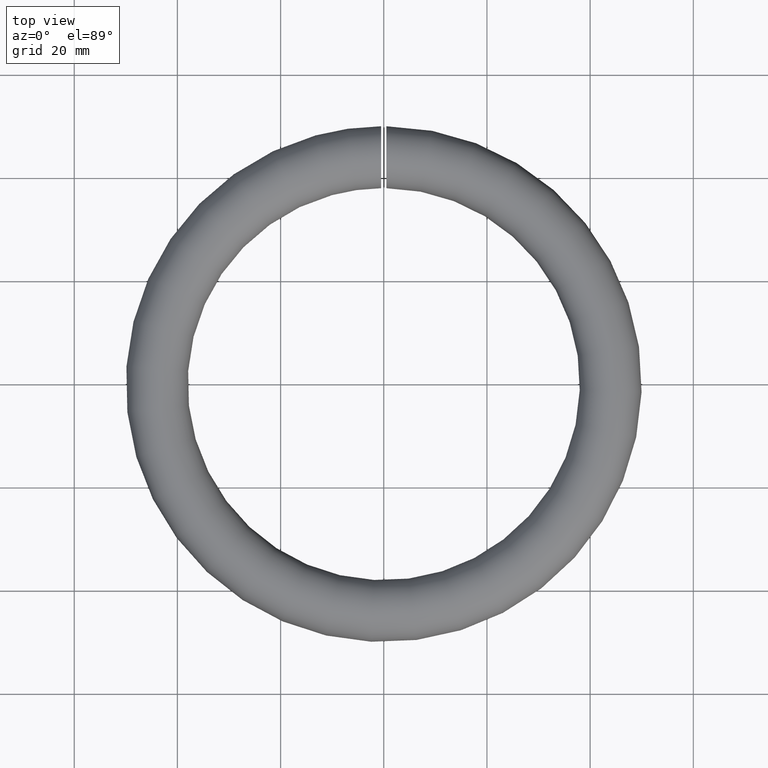
[diagram: clean part render]
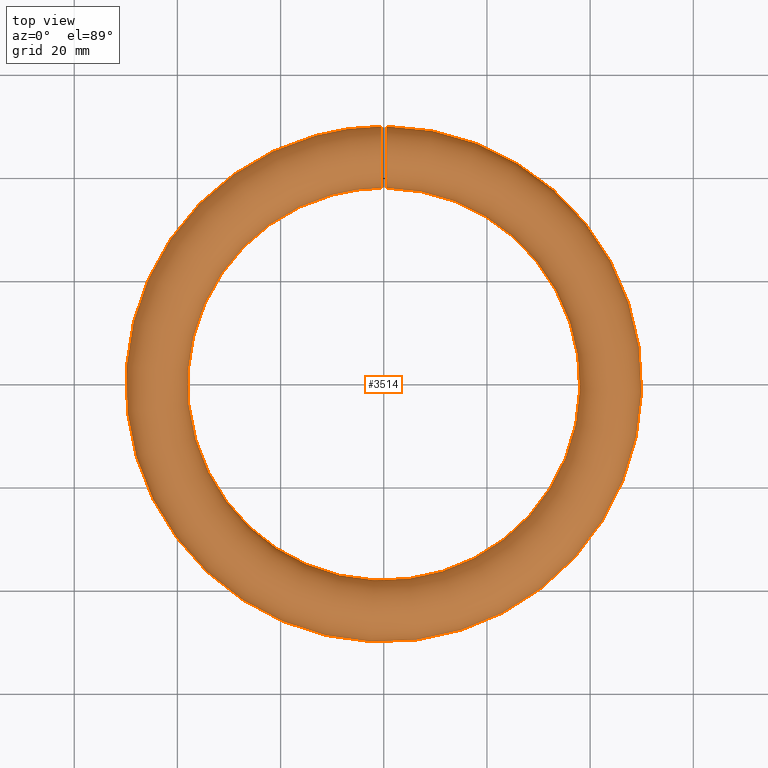
[diagram: same view with one face highlighted and labeled with its STEP entity id]
A machine part, top view. The second image highlights one B-rep face of the part: STEP entity #3514.
In plain terms, the highlighted toroidal blend (fillet) surface has major radius 44 mm and minor (blend) radius 6 mm.
Its self-contained STEP definition (entity closure, byte-faithful):
#6 = CARTESIAN_POINT ( 'NONE',  ( 0.5000000000000000000, 41.83031250651452400, 5.598599339381571800 ) ) ;
#41 = CARTESIAN_POINT ( 'NONE',  ( 0.5000000000000000000, 49.91128180690069600, 1.032405085983543000 ) ) ;
#86 = CARTESIAN_POINT ( 'NONE',  ( 0.4999999999999997800, 38.35052610730190300, 2.067300421237158000 ) ) ;
#125 = CARTESIAN_POINT ( 'NONE',  ( 0.4999999999999997800, 49.70098283491064700, -1.873054082020116700 ) ) ;
#161 = CARTESIAN_POINT ( 'NONE',  ( 0.4999999999999998900, 46.42928156858329200, 5.498927948953618000 ) ) ;
#319 = CARTESIAN_POINT ( 'NONE',  ( 0.4999999999999996700, 39.14280781783715200, -3.549058740126649300 ) ) ;
#444 = CARTESIAN_POINT ( 'NONE',  ( -0.4999999999999998900, 38.15465846743126100, -1.423005220882530600 ) ) ;
#485 = CARTESIAN_POINT ( 'NONE',  ( -0.5000000000000000000, 43.73601159210103600, 6.007051252144813200 ) ) ;
#533 = CARTESIAN_POINT ( 'NONE',  ( -0.4999999999999997800, 48.91379824561904100, -3.445049933177670300 ) ) ;
#577 = CARTESIAN_POINT ( 'NONE',  ( -0.5000000000000001100, 49.66139328936331800, 1.989547539012403600 ) ) ;
#621 = CARTESIAN_POINT ( 'NONE',  ( -0.5000000000000000000, 40.77119936796151500, 5.074299769511499700 ) ) ;
#667 = CARTESIAN_POINT ( 'NONE',  ( -0.5000000000000000000, 39.39737099156226900, -3.852921153683327200 ) ) ;
#866 = CARTESIAN_POINT ( 'NONE',  ( 0.4999999999999998900, 39.93205942218824600, -4.430589329789319700 ) ) ;
#985 = CARTESIAN_POINT ( 'NONE',  ( 0.5000000000000005600, 44.25065381595289400, -6.007609697859694000 ) ) ;
#1027 = CARTESIAN_POINT ( 'NONE',  ( 0.4999999999999998900, 39.20201214929683400, 3.612212901059305800 ) ) ;
#1060 = CARTESIAN_POINT ( 'NONE',  ( 0.5000000000000002200, 38.05519791178326700, 0.9229408533685317100 ) ) ;
#1104 = CARTESIAN_POINT ( 'NONE',  ( 0.4999999999999998900, 45.79824760901256300, -5.733307447162678400 ) ) ;
#1149 = CARTESIAN_POINT ( 'NONE',  ( 0.5000000000000001100, 41.93454905537947800, -5.648003819772143600 ) ) ;
#1169 = EDGE_CURVE ( 'NONE', #12084, #12084, #3208, .T. ) ;
#1193 = CARTESIAN_POINT ( 'NONE',  ( 0.4999999999999998900, 38.21258060580159800, -1.606801740850440300 ) ) ;
#1437 = CARTESIAN_POINT ( 'NONE',  ( -0.5000000000000004400, 44.12755159829870200, 6.011639561907816000 ) ) ;
#1478 = CARTESIAN_POINT ( 'NONE',  ( -0.5000000000000001100, 38.66804319614376300, 2.778315553021375000 ) ) ;
#1519 = CARTESIAN_POINT ( 'NONE',  ( -0.4999999999999998900, 48.34394707063939500, 4.154632970375121000 ) ) ;
#1564 = CARTESIAN_POINT ( 'NONE',  ( -0.5000000000000000000, 46.05031553422659100, 5.641258144220223900 ) ) ;
#1611 = CARTESIAN_POINT ( 'NONE',  ( -0.4999999999999998900, 38.35753430241701500, 2.058618298591209200 ) ) ;
#1698 = CARTESIAN_POINT ( 'NONE',  ( -0.5000000000000001100, 46.17518527771995500, -5.594234336022748400 ) ) ;
#1853 = CARTESIAN_POINT ( 'NONE',  ( 0.5000000000000001100, 40.54751535759930200, -4.913288692619752300 ) ) ;
#1866 = ORIENTED_EDGE ( 'NONE', *, *, #1169, .T. ) ;
#1893 = CARTESIAN_POINT ( 'NONE',  ( 0.5000000000000001100, 41.04883671915543200, -5.229461110008419000 ) ) ;
#1972 = CARTESIAN_POINT ( 'NONE',  ( 0.5000000000000000000, 45.41966907309217300, -5.832262087000367900 ) ) ;
#2009 = CARTESIAN_POINT ( 'NONE',  ( 0.5000000000000000000, 49.60379908073532800, 2.173494467577644400 ) ) ;
#2054 = CARTESIAN_POINT ( 'NONE',  ( 0.5000000000000000000, 46.06358472218767700, 5.646819912879345300 ) ) ;
#2095 = CARTESIAN_POINT ( 'NONE',  ( 0.4999999999999998900, 48.14782493274208300, -4.350530448135751600 ) ) ;
#2132 = CARTESIAN_POINT ( 'NONE',  ( 0.4999999999999997800, 48.06797608385880900, 4.425584207899208700 ) ) ;
#2171 = CARTESIAN_POINT ( 'NONE',  ( 0.5000000000000002200, 38.08292975981370900, -1.032363704153624000 ) ) ;
#2178 = VERTEX_POINT ( 'NONE', #2963 ) ;
#2338 = CARTESIAN_POINT ( 'NONE',  ( 0.5000000000000005600, 37.98892389153824900, -0.2483306560561411000 ) ) ;
#2434 = CARTESIAN_POINT ( 'NONE',  ( -0.4999999999999996700, 49.64721658340322100, -2.057807172510261600 ) ) ;
#2473 = CARTESIAN_POINT ( 'NONE',  ( -0.5000000000000000000, 49.35244891914466300, 2.713488686596328600 ) ) ;
#2521 = CARTESIAN_POINT ( 'NONE',  ( -0.4999999999999998900, 38.40039792701438200, -2.172483184759525600 ) ) ;
#2566 = CARTESIAN_POINT ( 'NONE',  ( -0.5000000000000000000, 49.59356167816606100, 2.173126320560692500 ) ) ;
#2612 = CARTESIAN_POINT ( 'NONE',  ( -0.5000000000000000000, 38.12659881866488100, 1.302807488565558300 ) ) ;
#2963 = CARTESIAN_POINT ( 'NONE',  ( -0.5000000000000000000, 39.39737099156226200, -3.852921153683327700 ) ) ;
#2974 = CARTESIAN_POINT ( 'NONE',  ( 0.5000000000000000000, 49.63682698014742600, -2.058307443547784400 ) ) ;
#3000 = B_SPLINE_CURVE_WITH_KNOTS ( 'NONE', 3,
 ( #8175, #4231, #3551, #8377, #6423, #2521, #4470, #444, #7413, #3375, #6289, #5451, #2612, #4388, #1611, #9269, #1478, #11186, #6334, #10158, #8295, #11324, #6377, #621, #7281, #7454, #9228, #5361, #4516, #12173, #485, #1437, #8424, #5491, #11276, #1564, #12306, #7367, #8255, #9310, #4347, #1519, #7320, #12260, #2473, #10336, #2566, #577, #9355, #6470, #11143, #3508, #5319, #12135, #2434, #3419, #10200, #3464, #533, #10243, #4427, #11232, #5406, #12217, #8338, #11462, #1698, #10430, #9405, #9453, #11374, #7587, #12347, #4650, #6518, #8563, #9545, #8518, #6611, #3598, #5627, #3642, #667 ),
 .UNSPECIFIED., .T., .F.,
 ( 4, 2, 2, 2, 2, 2, 2, 2, 1, 2, 2, 2, 2, 2, 2, 2, 2, 2, 2, 2, 2, 2, 2, 2, 2, 2, 2, 2, 2, 2, 2, 2, 2, 2, 2, 2, 2, 2, 2, 2, 2, 4 ),
 ( 0.0000000000000000000, 0.001172328530867528400, 0.001758492796301292700, 0.002344657061735056700, 0.003516985592602585700, 0.004689314123470114300, 0.005861642654337644200, 0.006447806919771413000, 0.007033971185205181000, 0.007620135450638949900, 0.008206299716072717000, 0.009378628246940239100, 0.01055095677780776300, 0.01172328530867528300, 0.01230944957410905400, 0.01289561383954282600, 0.01406794237041034500, 0.01524027090127786300, 0.01582643516671161300, 0.01641259943214536500, 0.01758492796301286400, 0.01875725649388036700, 0.01992958502474786300, 0.02051574929018161800, 0.02110191355561536600, 0.02227424208648287300, 0.02344657061735037600, 0.02461889914821787900, 0.02579122767908538200, 0.02637739194451913700, 0.02696355620995289500, 0.02813588474082040500, 0.02930821327168791500, 0.02989437753712168400, 0.03048054180255544600, 0.03165287033342299700, 0.03282519886429054200, 0.03399752739515809300, 0.03458369166059187300, 0.03516985592602564500, 0.03634218445689319600, 0.03751451298776074100 ),
 .UNSPECIFIED. ) ;
#3021 = CARTESIAN_POINT ( 'NONE',  ( 0.4999999999999997800, 38.87108053610681000, 3.125033099243654800 ) ) ;
#3063 = CARTESIAN_POINT ( 'NONE',  ( 0.5000000000000000000, 49.45063863066978600, 2.533097141768746200 ) ) ;
#3099 = CARTESIAN_POINT ( 'NONE',  ( 0.5000000000000000000, 47.54759910843275600, -4.852730274234920300 ) ) ;
#3136 = CARTESIAN_POINT ( 'NONE',  ( 0.4999999999999998900, 47.60745059114140800, 4.796477588812822800 ) ) ;
#3208 = B_SPLINE_CURVE_WITH_KNOTS ( 'NONE', 3,
 ( #5732, #6713, #866, #7688, #1853, #8668, #1893, #10619, #1149, #8863, #10696, #11727, #985, #4074, #7892, #1972, #1104, #7934, #7808, #10819, #3989, #3099, #2095, #9837, #11810, #8789, #8905, #4879, #2974, #125, #9915, #5882, #8945, #10781, #8827, #41, #9878, #10861, #2009, #3063, #6953, #7971, #9760, #2132, #3136, #5963, #5025, #11690, #161, #2054, #4030, #4951, #4991, #11850, #5843, #5923, #6003, #6, #3952, #6990, #6834, #10737, #4914, #6870, #1027, #7847, #3021, #9791, #11764, #86, #6905, #1060, #10069, #2338, #12009, #2171, #8174, #1193, #8057, #11892, #8985, #319, #6042 ),
 .UNSPECIFIED., .T., .F.,
 ( 4, 2, 2, 2, 2, 2, 2, 2, 1, 2, 2, 2, 2, 2, 2, 2, 2, 2, 2, 2, 2, 2, 2, 2, 2, 2, 2, 2, 2, 2, 2, 2, 2, 2, 2, 2, 2, 2, 2, 2, 2, 4 ),
 ( 0.0000000000000000000, 0.001172326858223292400, 0.001758490287334947200, 0.002344653716446602500, 0.003516980574669930800, 0.004689307432893259600, 0.005861634291116588400, 0.006447797720228243300, 0.007033961149339897300, 0.007620124578451552100, 0.008206288007563207800, 0.009378614865786515800, 0.01055094172400982500, 0.01172326858223313300, 0.01230943201134479400, 0.01289559544045645200, 0.01406792229867976700, 0.01524024915690308500, 0.01582641258601474500, 0.01641257601512640500, 0.01758490287334971800, 0.01875722973157303900, 0.01992955658979635500, 0.02051572001890801500, 0.02110188344801967500, 0.02227421030624299500, 0.02344653716446631600, 0.02461886402268964300, 0.02579119088091296300, 0.02637735431002461200, 0.02696351773913626200, 0.02813584459735956100, 0.02930817145558286400, 0.02989433488469451400, 0.03048049831380617000, 0.03165282517202947000, 0.03282515203025277600, 0.03399747888847607500, 0.03458364231758772500, 0.03516980574669937400, 0.03634213260492267400, 0.03751445946314598000 ),
 .UNSPECIFIED. ) ;
#3375 = CARTESIAN_POINT ( 'NONE',  ( -0.4999999999999998900, 37.98957229716668800, -0.2608676112480247700 ) ) ;
#3419 = CARTESIAN_POINT ( 'NONE',  ( -0.4999999999999997800, 49.50162749614316500, -2.420452813832230100 ) ) ;
#3464 = CARTESIAN_POINT ( 'NONE',  ( -0.5000000000000000000, 49.12944846061099500, -3.114731721020254100 ) ) ;
#3508 = CARTESIAN_POINT ( 'NONE',  ( -0.5000000000000000000, 50.00878039207199800, -0.1324696537779092900 ) ) ;
#3514 = ADVANCED_FACE ( 'NONE', ( #11838, #7102 ), #9698, .T. ) ;
#3551 = CARTESIAN_POINT ( 'NONE',  ( -0.5000000000000000000, 38.92231477883631600, -3.225295393302390700 ) ) ;
#3598 = CARTESIAN_POINT ( 'NONE',  ( -0.5000000000000001100, 40.55130454395212800, -4.927926503097126900 ) ) ;
#3642 = CARTESIAN_POINT ( 'NONE',  ( -0.5000000000000001100, 39.65193408869695400, -4.156783475816893300 ) ) ;
#3952 = CARTESIAN_POINT ( 'NONE',  ( 0.5000000000000000000, 41.46728514846600400, 5.444218560056084400 ) ) ;
#3989 = CARTESIAN_POINT ( 'NONE',  ( 0.5000000000000000000, 47.22467352686863500, -5.073490124112774800 ) ) ;
#4030 = CARTESIAN_POINT ( 'NONE',  ( 0.5000000000000001100, 45.30507621945351800, 5.869048518613821500 ) ) ;
#4074 = CARTESIAN_POINT ( 'NONE',  ( 0.5000000000000001100, 44.83899540424506100, -5.943930327654849900 ) ) ;
#4206 = EDGE_CURVE ( 'NONE', #2178, #2178, #3000, .T. ) ;
#4231 = CARTESIAN_POINT ( 'NONE',  ( -0.4999999999999998900, 39.14280789442759100, -3.549058831549764600 ) ) ;
#4347 = CARTESIAN_POINT ( 'NONE',  ( -0.4999999999999998900, 48.05840780571886500, 4.434163735232104400 ) ) ;
#4388 = CARTESIAN_POINT ( 'NONE',  ( -0.5000000000000001100, 38.29246302239422300, 1.870877970439819700 ) ) ;
#4427 = CARTESIAN_POINT ( 'NONE',  ( -0.5000000000000000000, 48.43132552637950300, -4.061207597636349800 ) ) ;
#4470 = CARTESIAN_POINT ( 'NONE',  ( -0.5000000000000002200, 38.33147657807751300, -1.985816915678953800 ) ) ;
#4516 = CARTESIAN_POINT ( 'NONE',  ( -0.5000000000000001100, 42.95934538297430500, 5.912860716902912400 ) ) ;
#4650 = CARTESIAN_POINT ( 'NONE',  ( -0.5000000000000004400, 42.69940036261109400, -5.871217274689729300 ) ) ;
#4812 = CARTESIAN_POINT ( 'NONE',  ( 0.0000000000000000000, 0.0000000000000000000, 0.0000000000000000000 ) ) ;
#4879 = CARTESIAN_POINT ( 'NONE',  ( 0.5000000000000001100, 49.48958584708179800, -2.423954299032711600 ) ) ;
#4914 = CARTESIAN_POINT ( 'NONE',  ( 0.5000000000000001100, 39.84523926842719300, 4.349773131344723400 ) ) ;
#4951 = CARTESIAN_POINT ( 'NONE',  ( 0.5000000000000001100, 44.92054789425554900, 5.941420279668850700 ) ) ;
#4991 = CARTESIAN_POINT ( 'NONE',  ( 0.4999999999999998900, 44.14126057003827700, 6.011010832555874700 ) ) ;
#5025 = CARTESIAN_POINT ( 'NONE',  ( 0.5000000000000000000, 47.11769558188712600, 5.128551152876180900 ) ) ;
#5211 = AXIS2_PLACEMENT_3D ( 'NONE', #4812, #6688, #11625 ) ;
#5319 = CARTESIAN_POINT ( 'NONE',  ( -0.4999999999999998900, 49.94068530936012700, -0.9118925174453590400 ) ) ;
#5361 = CARTESIAN_POINT ( 'NONE',  ( -0.4999999999999997800, 42.57355810974904400, 5.832020870326401200 ) ) ;
#5406 = CARTESIAN_POINT ( 'NONE',  ( -0.4999999999999998900, 47.55179826911662400, -4.850007524273407500 ) ) ;
#5451 = CARTESIAN_POINT ( 'NONE',  ( -0.5000000000000002200, 38.05451836197521900, 0.9184296835932885800 ) ) ;
#5491 = CARTESIAN_POINT ( 'NONE',  ( -0.5000000000000000000, 45.30232503931327400, 5.869371045710724200 ) ) ;
#5627 = CARTESIAN_POINT ( 'NONE',  ( -0.5000000000000001100, 39.93367631148377200, -4.432512416054621900 ) ) ;
#5732 = CARTESIAN_POINT ( 'NONE',  ( 0.4999999999999997800, 39.39737099156225500, -3.852921153683327200 ) ) ;
#5843 = CARTESIAN_POINT ( 'NONE',  ( 0.4999999999999998900, 42.96163964044191600, 5.922996955460526200 ) ) ;
#5882 = CARTESIAN_POINT ( 'NONE',  ( 0.5000000000000002200, 49.93889791652650000, -0.9255130396122341900 ) ) ;
#5923 = CARTESIAN_POINT ( 'NONE',  ( 0.5000000000000000000, 42.57908469887516400, 5.843252389314043800 ) ) ;
#5963 = CARTESIAN_POINT ( 'NONE',  ( 0.5000000000000000000, 47.44658302366345000, 4.913401063950476400 ) ) ;
#6003 = CARTESIAN_POINT ( 'NONE',  ( 0.4999999999999997800, 42.01681042311410900, 5.667214127230598000 ) ) ;
#6042 = CARTESIAN_POINT ( 'NONE',  ( 0.4999999999999997800, 39.39737099156225500, -3.852921153683327200 ) ) ;
#6091 = ORIENTED_EDGE ( 'NONE', *, *, #4206, .T. ) ;
#6289 = CARTESIAN_POINT ( 'NONE',  ( -0.5000000000000002200, 37.98555264509999300, 0.1386100552657162400 ) ) ;
#6334 = CARTESIAN_POINT ( 'NONE',  ( -0.4999999999999997800, 39.08020326579428200, 3.444645452352378200 ) ) ;
#6377 = CARTESIAN_POINT ( 'NONE',  ( -0.5000000000000000000, 40.44150592258021200, 4.848939663127737300 ) ) ;
#6423 = CARTESIAN_POINT ( 'NONE',  ( -0.5000000000000000000, 38.55491545076778000, -2.534784592631932600 ) ) ;
#6470 = CARTESIAN_POINT ( 'NONE',  ( -0.5000000000000001100, 49.91908382436344700, 1.044497120782577300 ) ) ;
#6518 = CARTESIAN_POINT ( 'NONE',  ( -0.4999999999999998900, 42.13204663066088100, -5.706190611091979100 ) ) ;
#6611 = CARTESIAN_POINT ( 'NONE',  ( -0.5000000000000001100, 40.88109137502992500, -5.142391492012978700 ) ) ;
#6688 = DIRECTION ( 'NONE',  ( -0.0000000000000000000, -0.0000000000000000000, -1.000000000000000000 ) ) ;
#6713 = CARTESIAN_POINT ( 'NONE',  ( 0.4999999999999998900, 39.65193416528735800, -4.156783567240003300 ) ) ;
#6834 = CARTESIAN_POINT ( 'NONE',  ( 0.5000000000000000000, 40.77605382508026100, 5.077287559738458400 ) ) ;
#6870 = CARTESIAN_POINT ( 'NONE',  ( 0.5000000000000002200, 39.56983176560554200, 4.068700048668422800 ) ) ;
#6905 = CARTESIAN_POINT ( 'NONE',  ( 0.5000000000000001100, 38.12963188946847700, 1.315570590824001000 ) ) ;
#6953 = CARTESIAN_POINT ( 'NONE',  ( 0.5000000000000001100, 49.07476154382535300, 3.220953506144521100 ) ) ;
#6990 = CARTESIAN_POINT ( 'NONE',  ( 0.5000000000000000000, 41.29080169675200600, 5.358625614200141400 ) ) ;
#7102 = FACE_OUTER_BOUND ( 'NONE', #9783, .T. ) ;
#7281 = CARTESIAN_POINT ( 'NONE',  ( -0.4999999999999998900, 41.45940427150435400, 5.451106980544547100 ) ) ;
#7320 = CARTESIAN_POINT ( 'NONE',  ( -0.5000000000000000000, 48.84707308242691700, 3.554488771235099400 ) ) ;
#7367 = CARTESIAN_POINT ( 'NONE',  ( -0.5000000000000003300, 46.59637325129202900, 5.411434856038795300 ) ) ;
#7413 = CARTESIAN_POINT ( 'NONE',  ( -0.5000000000000002200, 38.07462475518033100, -1.040468433036488600 ) ) ;
#7454 = CARTESIAN_POINT ( 'NONE',  ( -0.4999999999999998900, 41.81884793358789000, 5.604468397347146100 ) ) ;
#7587 = CARTESIAN_POINT ( 'NONE',  ( -0.5000000000000001100, 43.86414101781090100, -6.011300498317915200 ) ) ;
#7688 = CARTESIAN_POINT ( 'NONE',  ( 0.5000000000000001100, 40.38902053544913400, -4.798058928106439900 ) ) ;
#7808 = CARTESIAN_POINT ( 'NONE',  ( 0.5000000000000001100, 46.52652612722695800, -5.444410101936061800 ) ) ;
#7847 = CARTESIAN_POINT ( 'NONE',  ( 0.5000000000000001100, 39.08672680769932800, 3.453958918160179100 ) ) ;
#7892 = CARTESIAN_POINT ( 'NONE',  ( 0.5000000000000001100, 45.03524202263339800, -5.912789729728687300 ) ) ;
#7934 = CARTESIAN_POINT ( 'NONE',  ( 0.5000000000000002200, 46.16530607305564600, -5.598056354646322700 ) ) ;
#7971 = CARTESIAN_POINT ( 'NONE',  ( 0.5000000000000000000, 48.84958756562333100, 3.551056091083110800 ) ) ;
#8057 = CARTESIAN_POINT ( 'NONE',  ( 0.5000000000000000000, 38.38780569136972100, -2.166229115575882600 ) ) ;
#8174 = CARTESIAN_POINT ( 'NONE',  ( 0.4999999999999998900, 38.16321863279001300, -1.417346365057176300 ) ) ;
#8175 = CARTESIAN_POINT ( 'NONE',  ( -0.5000000000000000000, 39.39737099156226900, -3.852921153683327200 ) ) ;
#8255 = CARTESIAN_POINT ( 'NONE',  ( -0.5000000000000002200, 47.11985529347625600, 5.138561713621968800 ) ) ;
#8295 = CARTESIAN_POINT ( 'NONE',  ( -0.5000000000000000000, 39.56782396923544800, 4.066902912889805300 ) ) ;
#8338 = CARTESIAN_POINT ( 'NONE',  ( -0.5000000000000000000, 46.71287109588895700, -5.353875974197299200 ) ) ;
#8377 = CARTESIAN_POINT ( 'NONE',  ( -0.5000000000000000000, 38.64059254482229700, -2.711017941214048900 ) ) ;
#8424 = CARTESIAN_POINT ( 'NONE',  ( -0.5000000000000000000, 44.91655070905618900, 5.942359498527338200 ) ) ;
#8518 = CARTESIAN_POINT ( 'NONE',  ( -0.5000000000000001100, 41.40115411550290500, -5.412934794264863600 ) ) ;
#8563 = CARTESIAN_POINT ( 'NONE',  ( -0.5000000000000000000, 41.94397004591802900, -5.641244883072320500 ) ) ;
#8668 = CARTESIAN_POINT ( 'NONE',  ( 0.5000000000000001100, 40.87713536324560700, -5.128897070413491300 ) ) ;
#8789 = CARTESIAN_POINT ( 'NONE',  ( 0.4999999999999997800, 49.13321890994153300, -3.127044691261934500 ) ) ;
#8827 = CARTESIAN_POINT ( 'NONE',  ( 0.5000000000000000000, 49.94177207371286200, 0.8389218375431079000 ) ) ;
#8863 = CARTESIAN_POINT ( 'NONE',  ( 0.5000000000000001100, 42.68717063243895600, -5.868380507393940300 ) ) ;
#8905 = CARTESIAN_POINT ( 'NONE',  ( 0.4999999999999998900, 49.40625878882912800, -2.604538626650416200 ) ) ;
#8945 = CARTESIAN_POINT ( 'NONE',  ( 0.5000000000000002200, 50.00900248407322100, -0.1366134592073797700 ) ) ;
#8985 = CARTESIAN_POINT ( 'NONE',  ( 0.5000000000000000000, 38.92070301448738000, -3.223364481175224700 ) ) ;
#9228 = CARTESIAN_POINT ( 'NONE',  ( -0.4999999999999998900, 42.38115466912530100, 5.781651604174943900 ) ) ;
#9269 = CARTESIAN_POINT ( 'NONE',  ( -0.5000000000000000000, 38.50422922215959400, 2.422960718614726600 ) ) ;
#9310 = CARTESIAN_POINT ( 'NONE',  ( -0.5000000000000003300, 47.44705375910180600, 4.924758997628799800 ) ) ;
#9355 = CARTESIAN_POINT ( 'NONE',  ( -0.4999999999999998900, 49.83756832117288100, 1.430462674351834900 ) ) ;
#9405 = CARTESIAN_POINT ( 'NONE',  ( -0.5000000000000001100, 45.42514374372986200, -5.840907868191493400 ) ) ;
#9453 = CARTESIAN_POINT ( 'NONE',  ( -0.5000000000000003300, 45.04256879346035400, -5.921209035880087500 ) ) ;
#9545 = CARTESIAN_POINT ( 'NONE',  ( -0.5000000000000000000, 41.57902496516590700, -5.494732426490248400 ) ) ;
#9698 = TOROIDAL_SURFACE ( 'NONE', #5211, 44.00000000000000700, 6.000000000000000000 ) ;
#9760 = CARTESIAN_POINT ( 'NONE',  ( 0.5000000000000001100, 48.34688178004042000, 4.151561015939481800 ) ) ;
#9783 = EDGE_LOOP ( 'NONE', ( #6091 ) ) ;
#9791 = CARTESIAN_POINT ( 'NONE',  ( 0.4999999999999998900, 38.77031090000856000, 2.953445429167085700 ) ) ;
#9837 = CARTESIAN_POINT ( 'NONE',  ( 0.5000000000000001100, 48.42751588933315100, -4.065481995908559300 ) ) ;
#9867 = CARTESIAN_POINT ( 'NONE',  ( 0.5000000000000000000, 39.39737099156226200, -3.852921153683327700 ) ) ;
#9878 = CARTESIAN_POINT ( 'NONE',  ( 0.5000000000000000000, 49.83091738217691400, 1.417699104648916700 ) ) ;
#9915 = CARTESIAN_POINT ( 'NONE',  ( 0.4999999999999997800, 49.86573884375332000, -1.310179439016207800 ) ) ;
#10069 = CARTESIAN_POINT ( 'NONE',  ( 0.4999999999999998900, 37.98562623345125600, 0.1425805867772903800 ) ) ;
#10158 = CARTESIAN_POINT ( 'NONE',  ( -0.5000000000000000000, 39.19673377814506700, 3.605305890605576800 ) ) ;
#10200 = CARTESIAN_POINT ( 'NONE',  ( -0.4999999999999998900, 49.22970966114797900, -2.943152276639158700 ) ) ;
#10243 = CARTESIAN_POINT ( 'NONE',  ( -0.5000000000000002200, 48.79858140298275500, -3.603784171090249600 ) ) ;
#10336 = CARTESIAN_POINT ( 'NONE',  ( -0.5000000000000001100, 49.43937385723317100, 2.534623045305898000 ) ) ;
#10377 = EDGE_LOOP ( 'NONE', ( #1866 ) ) ;
#10430 = CARTESIAN_POINT ( 'NONE',  ( -0.5000000000000001100, 45.98858103570458400, -5.663347136233223700 ) ) ;
#10619 = CARTESIAN_POINT ( 'NONE',  ( 0.4999999999999998900, 41.57195774356612400, -5.502168805198453900 ) ) ;
#10696 = CARTESIAN_POINT ( 'NONE',  ( 0.5000000000000004400, 43.07975819015986500, -5.942363694166481000 ) ) ;
#10737 = CARTESIAN_POINT ( 'NONE',  ( 0.4999999999999998900, 40.45234950855115800, 4.857221067685751200 ) ) ;
#10781 = CARTESIAN_POINT ( 'NONE',  ( 0.5000000000000000000, 50.00476534336194600, 0.2560149978423137400 ) ) ;
#10819 = CARTESIAN_POINT ( 'NONE',  ( 0.5000000000000000000, 46.70512684089398200, -5.357870554928382500 ) ) ;
#10861 = CARTESIAN_POINT ( 'NONE',  ( 0.5000000000000001100, 49.78071585479606400, 1.610282716001681500 ) ) ;
#11143 = CARTESIAN_POINT ( 'NONE',  ( -0.4999999999999998900, 50.00492943205208700, 0.2587891116098055000 ) ) ;
#11186 = CARTESIAN_POINT ( 'NONE',  ( -0.5000000000000000000, 38.86557814449852800, 3.115966714084630300 ) ) ;
#11232 = CARTESIAN_POINT ( 'NONE',  ( -0.5000000000000001100, 48.15789039997910200, -4.341299383827029100 ) ) ;
#11276 = CARTESIAN_POINT ( 'NONE',  ( -0.5000000000000000000, 45.86516898043279200, 5.705187229144701900 ) ) ;
#11324 = CARTESIAN_POINT ( 'NONE',  ( -0.4999999999999998900, 39.84180121805381000, 4.346098513811578600 ) ) ;
#11374 = CARTESIAN_POINT ( 'NONE',  ( -0.5000000000000002200, 44.26373724324167800, -6.006863163734103700 ) ) ;
#11462 = CARTESIAN_POINT ( 'NONE',  ( -0.5000000000000000000, 46.53684639144076100, -5.439618371088137400 ) ) ;
#11625 = DIRECTION ( 'NONE',  ( -1.000000000000000000, 0.0000000000000000000, 0.0000000000000000000 ) ) ;
#11690 = CARTESIAN_POINT ( 'NONE',  ( 0.5000000000000000000, 46.94884299907093400, 5.227503435574957000 ) ) ;
#11727 = CARTESIAN_POINT ( 'NONE',  ( 0.5000000000000000000, 43.85959448474177000, -6.011179447008379900 ) ) ;
#11764 = CARTESIAN_POINT ( 'NONE',  ( 0.4999999999999997800, 38.49667486859060300, 2.429866144158511900 ) ) ;
#11810 = CARTESIAN_POINT ( 'NONE',  ( 0.5000000000000001100, 48.91919736917068200, -3.454020164401285300 ) ) ;
#11838 = FACE_OUTER_BOUND ( 'NONE', #10377, .T. ) ;
#11850 = CARTESIAN_POINT ( 'NONE',  ( 0.5000000000000001100, 43.74212837659981500, 6.007413725598463600 ) ) ;
#11892 = CARTESIAN_POINT ( 'NONE',  ( 0.4999999999999998900, 38.54116230584549600, -2.528479833248317400 ) ) ;
#12009 = CARTESIAN_POINT ( 'NONE',  ( 0.4999999999999997800, 38.05195216788784800, -0.8358125478939313300 ) ) ;
#12084 = VERTEX_POINT ( 'NONE', #9867 ) ;
#12135 = CARTESIAN_POINT ( 'NONE',  ( -0.5000000000000001100, 49.86716832935018600, -1.304217816214983600 ) ) ;
#12173 = CARTESIAN_POINT ( 'NONE',  ( -0.5000000000000002200, 43.15297395051028000, 5.943539250728931300 ) ) ;
#12217 = CARTESIAN_POINT ( 'NONE',  ( -0.5000000000000003300, 47.22680052377506100, -5.071824438368805600 ) ) ;
#12260 = CARTESIAN_POINT ( 'NONE',  ( -0.5000000000000000000, 49.06798743618106300, 3.231883944862884200 ) ) ;
#12306 = CARTESIAN_POINT ( 'NONE',  ( -0.5000000000000001100, 46.41556841348083400, 5.494609810267390600 ) ) ;
#12347 = CARTESIAN_POINT ( 'NONE',  ( -0.5000000000000000000, 43.08368295776763500, -5.942987158470842200 ) ) ;